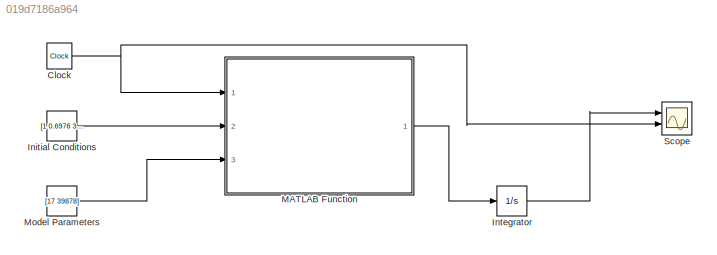
MODEL slx_019d7186a964
KIND model
CONFIG AbsTol = auto
CONFIG FixedStep = auto
CONFIG MaxStep = auto
CONFIG MinStep = auto
CONFIG RelTol = 1e-3
CONFIG SampleTimeConstraint = Unconstrained
CONFIG Solver = VariableStepAuto
CONFIG SolverMode = Auto
CONFIG SolverName = VariableStepAuto
CONFIG StartTime = 0.0
CONFIG StopTime = 100000
BLOCK [Clock] Clock
BLOCK [Constant] Initial Conditions
  Value = [1 0.6976 34.0404]
  VectorParams1D = off
BLOCK [Integrator] Integrator
  Ports = [1, 1]
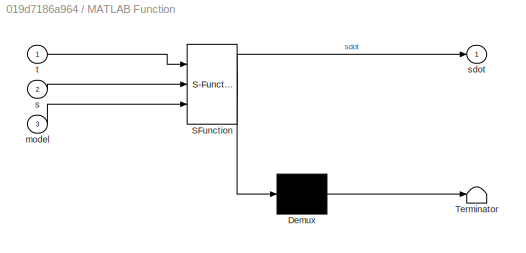
BLOCK [SubSystem] MATLAB Function
  ErrorFcn = Stateflow.Translate.translate
  PermitHierarchicalResolution = ExplicitOnly
  Ports = [3, 1]
  RequestExecContextInheritance = off
  SFBlockType = MATLAB Function
  TreatAsAtomicUnit = on
  Variant = off
BLOCK [Demux] MATLAB Function/ Demux 
  Outputs = 1
  Ports = [1, 1]
BLOCK [S-Function] MATLAB Function/ SFunction 
  EnableBusSupport = on
  FunctionName = sf_sfun
  PortCounts = [3 2]
  Ports = [3, 2]
  SFunctionDeploymentMode = off
  Tag = Stateflow S-Function launcher 2
BLOCK [Terminator] MATLAB Function/ Terminator 
BLOCK [Inport] MATLAB Function/model
  IconDisplay = Port number
  Port = 3
BLOCK [Inport] MATLAB Function/s
  IconDisplay = Port number
  Port = 2
BLOCK [Outport] MATLAB Function/sdot
  IconDisplay = Port number
BLOCK [Inport] MATLAB Function/t
  IconDisplay = Port number
BLOCK [Constant] Model Parameters
  Value = [17 39878]
  VectorParams1D = off
BLOCK [Scope] Scope
  NumInputPorts = 2
  Ports = [2]
  ScopeSpecificationString = Simulink.scopes.TimeScopeBlockCfg('CurrentConfiguration', extmgr.ConfigurationSet(extmgr.Configuration('Core','General UI',true),extmgr.Configuration('Core','Source UI',true),extmgr.Configuration('Sources','WiredSimulink',true),extmgr.Configuration('Visuals','Time Domain',true,'SerializedDisplays',{struct('MinYLimReal','-34897.00112','MaxYLimReal','90103.02417','YLabelReal','','MinYLimMag','   0.0...<+1419ch>
NET Clock:1 -> MATLAB Function:1, Scope:2
LINE Initial Conditions:1 -> MATLAB Function:2
LINE Integrator:1 -> Scope:1
LINE MATLAB Function:1 -> Integrator:1
LINE Model Parameters:1 -> MATLAB Function:3
note: NET lines group one-source signal fan-out (src -> all destinations, sorted); 1:1 wires keep LINE
CHART MATLAB Function states=1 transitions=1
  STATE_LABEL 'eML_blk_kernel()'
  STATE_LABEL "SCRIPT:\nfunction sdot   = lunardisk( t,s,model )\n%UNTITLED Summary of this function goes here\n%   Detailed explanation goes here\n\nm   = model(1);\nIzz = model(2);\n\nsdot1 = s(2);\nsdot2 = s(3)^2*s(1);\nsdot3 =-2*m*s(1)*s(2)*s(3)/(Izz+m*s(1));\n\nsdot = [sdot1 sdot2 sdot3]';\nend"
